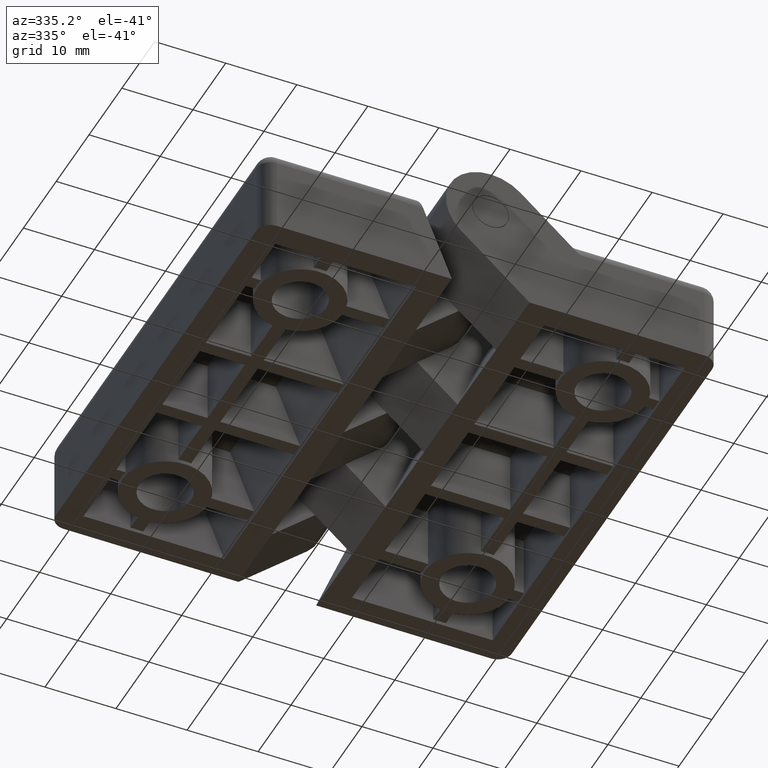
[diagram: clean part render]
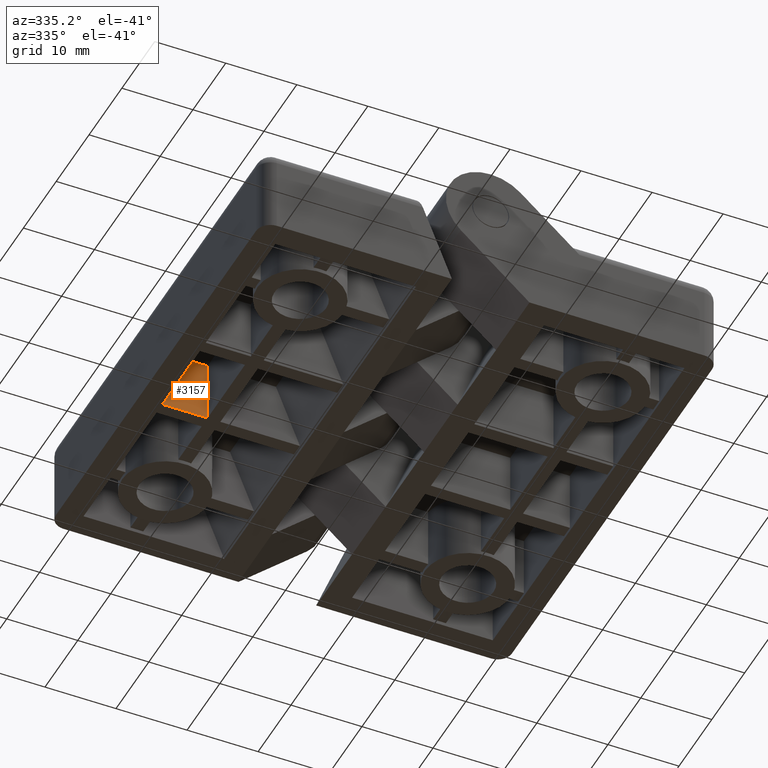
[diagram: same view with one face highlighted and labeled with its STEP entity id]
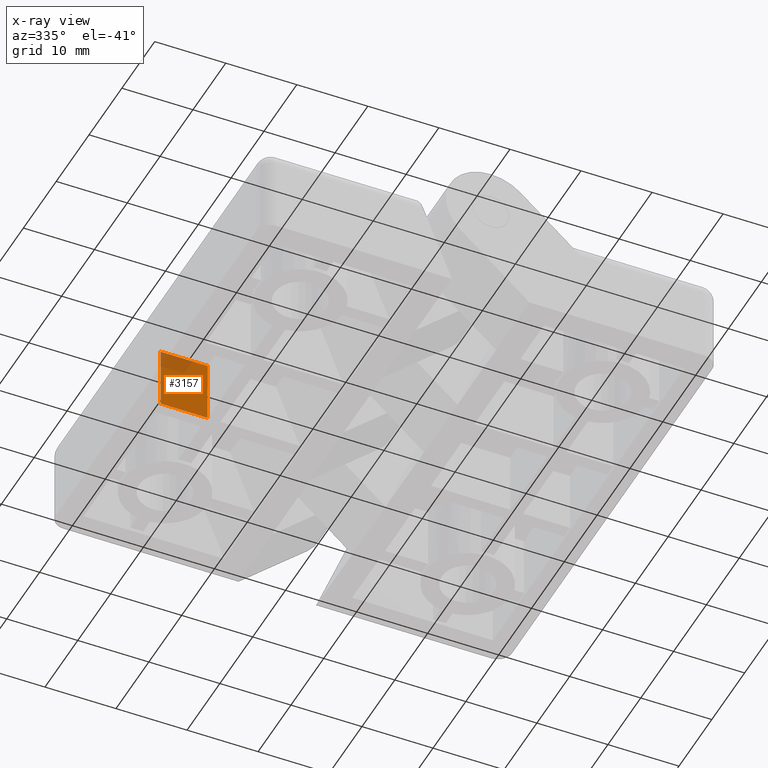
[diagram: x-ray of the same camera — body ghosted, the highlighted face saturated]
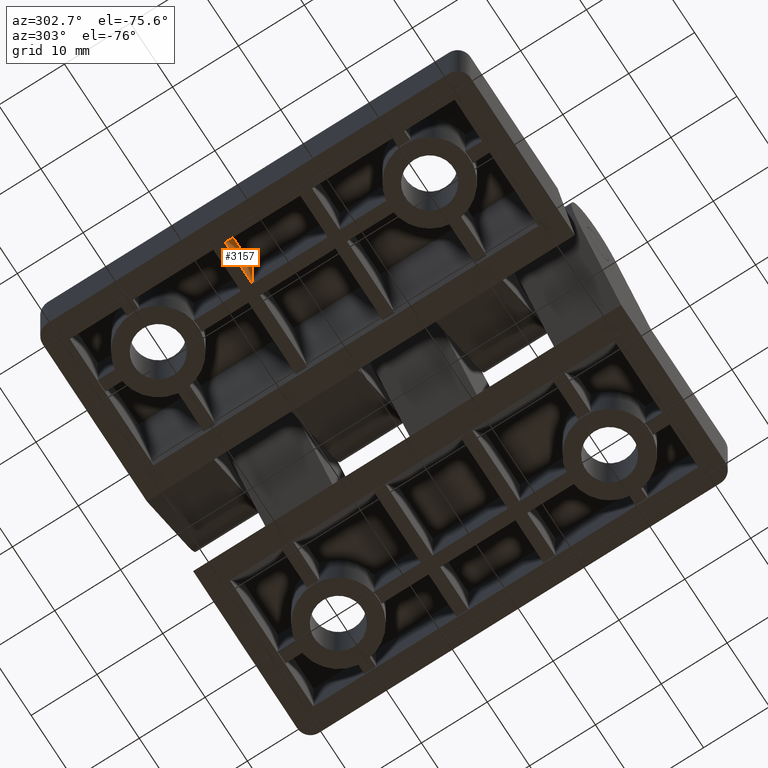
[diagram: same view with one face highlighted and labeled with its STEP entity id]
A machine part, auxiliary view. The second image highlights one B-rep face of the part: STEP entity #3157.
The next image is the same camera in x-ray: the body ghosted, the highlighted face saturated — about 17% of this face is hidden behind the body in this view.
A second angle (auxiliary view) of the same face is appended — the face is thin or edge-on in the first view.
In plain terms, the highlighted planar face has unit normal (0, -1, 0).
Its self-contained STEP definition (entity closure, byte-faithful):
#93=PLANE('',#3368);
#251=FACE_OUTER_BOUND('',#444,.T.);
#444=EDGE_LOOP('',(#2276,#2277,#2278,#2279));
#760=LINE('',#4659,#1114);
#761=LINE('',#4661,#1115);
#762=LINE('',#4663,#1116);
#763=LINE('',#4664,#1117);
#1114=VECTOR('',#3735,8.79999999999999);
#1115=VECTOR('',#3736,6.6);
#1116=VECTOR('',#3737,8.79999999999999);
#1117=VECTOR('',#3738,6.6);
#1488=VERTEX_POINT('',#4657);
#1489=VERTEX_POINT('',#4658);
#1490=VERTEX_POINT('',#4660);
#1491=VERTEX_POINT('',#4662);
#1800=EDGE_CURVE('',#1488,#1489,#760,.T.);
#1801=EDGE_CURVE('',#1490,#1488,#761,.T.);
#1802=EDGE_CURVE('',#1491,#1490,#762,.T.);
#1803=EDGE_CURVE('',#1491,#1489,#763,.T.);
#2276=ORIENTED_EDGE('',*,*,#1800,.F.);
#2277=ORIENTED_EDGE('',*,*,#1801,.F.);
#2278=ORIENTED_EDGE('',*,*,#1802,.F.);
#2279=ORIENTED_EDGE('',*,*,#1803,.T.);
#3157=ADVANCED_FACE('',(#251),#93,.T.);
#3368=AXIS2_PLACEMENT_3D('',#4656,#3733,#3734);
#3733=DIRECTION('center_axis',(0.,-1.,0.));
#3734=DIRECTION('ref_axis',(1.,0.,0.));
#3735=DIRECTION('',(0.,0.,-1.));
#3736=DIRECTION('',(1.,0.,-2.39444996755761E-16));
#3737=DIRECTION('',(0.,0.,1.));
#3738=DIRECTION('',(1.,0.,0.));
#4656=CARTESIAN_POINT('Origin',(-30.4220447265728,5.7,-12.8999999999871));
#4657=CARTESIAN_POINT('',(-22.2,5.7,-4.09999999998711));
#4658=CARTESIAN_POINT('',(-22.2,5.7,-12.8999999999871));
#4659=CARTESIAN_POINT('',(-22.2,5.7,-12.8999999999871));
#4660=CARTESIAN_POINT('',(-28.8,5.7,-4.09999999998711));
#4661=CARTESIAN_POINT('',(-21.4968820829789,5.7,-4.09999999998711));
#4662=CARTESIAN_POINT('',(-28.8,5.7,-12.8999999999871));
#4663=CARTESIAN_POINT('',(-28.8,5.7,-8.4999999999871));
#4664=CARTESIAN_POINT('',(-30.4220447265728,5.7,-12.8999999999871));